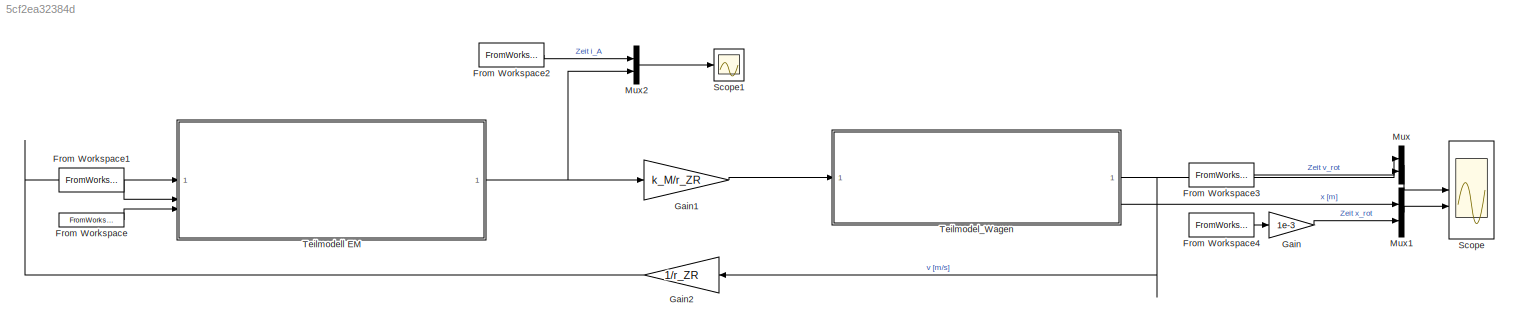
MODEL slx_5cf2ea32384d
KIND model
CONFIG AbsTol = auto
CONFIG EnableMultiTasking = off
CONFIG FixedStep = 1e-5
CONFIG MaxStep = auto
CONFIG MinStep = auto
CONFIG RelTol = 1e-3
CONFIG SampleTimeConstraint = Unconstrained
CONFIG SolverName = ode3
CONFIG StartTime = 0.0
CONFIG StopTime = Zeit(end)
BLOCK [FromWorkspace] From Workspace
  VariableName = [Zeit U_B]
BLOCK [FromWorkspace] From Workspace1
  VariableName = [Zeit PWM_EM]
BLOCK [FromWorkspace] From Workspace2
  VariableName = [Zeit i_A]
BLOCK [FromWorkspace] From Workspace3
  VariableName = [Zeit v_rot]
BLOCK [FromWorkspace] From Workspace4
  VariableName = [Zeit x_rot]
BLOCK [Gain] Gain
  Gain = 1e-3
BLOCK [Gain] Gain1
  Gain = k_M/r_ZR
BLOCK [Gain] Gain2
  Gain = 1/r_ZR
BLOCK [Mux] Mux
  DisplayOption = bar
  Inputs = 2
BLOCK [Mux] Mux1
  DisplayOption = bar
  Inputs = 2
BLOCK [Mux] Mux2
  DisplayOption = bar
  Inputs = 2
BLOCK [Scope] Scope
  Floating = off
  NumInputPorts = 2
  ScopeSpecificationString = Simulink.scopes.TimeScopeBlockCfg('CurrentConfiguration', extmgr.ConfigurationSet(extmgr.Configuration('Core','General UI',true),extmgr.Configuration('Core','Source UI',true),extmgr.Configuration('Sources','WiredSimulink',true,'DataLoggingVariableName','ScopeData2'),extmgr.Configuration('Visuals','Time Domain',true,'SerializedDisplays',{struct('MinYLimReal','-1.15642','MaxYLimReal','2.83824','YLab...<+2069ch>
BLOCK [Scope] Scope1
  Floating = off
  NumInputPorts = 1
  ScopeSpecificationString = Simulink.scopes.TimeScopeBlockCfg('CurrentConfiguration', extmgr.ConfigurationSet(extmgr.Configuration('Core','General UI',true),extmgr.Configuration('Core','Source UI',true),extmgr.Configuration('Sources','WiredSimulink',true,'DataLoggingVariableName','ScopeData3'),extmgr.Configuration('Visuals','Time Domain',true,'SerializedDisplays',{struct('MinYLimReal','-1.25575','MaxYLimReal','7.62668','YLab...<+1433ch>
BLOCK [SubSystem] Teilmodel_Wagen
  ReferencedSubsystem = V4_Modell_Wagen
BLOCK [SubSystem] Teilmodell EM
  ReferencedSubsystem = V4_Modell_EM
LINE From Workspace1:1 -> Teilmodell EM:2
LINE From Workspace2:1 -> Mux2:1
LINE From Workspace3:1 -> Mux:2
LINE From Workspace4:1 -> Gain:1
LINE From Workspace:1 -> Teilmodell EM:3
LINE Gain1:1 -> Teilmodel_Wagen:1
LINE Gain2:1 -> Teilmodell EM:1
LINE Gain:1 -> Mux1:2
LINE Mux1:1 -> Scope:2
LINE Mux2:1 -> Scope1:1
LINE Mux:1 -> Scope:1
NET Teilmodel_Wagen:1 -> Gain2:1, Mux:1
LINE Teilmodel_Wagen:2 -> Mux1:1
NET Teilmodell EM:1 -> Gain1:1, Mux2:2
note: NET lines group one-source signal fan-out (src -> all destinations, sorted); 1:1 wires keep LINE
